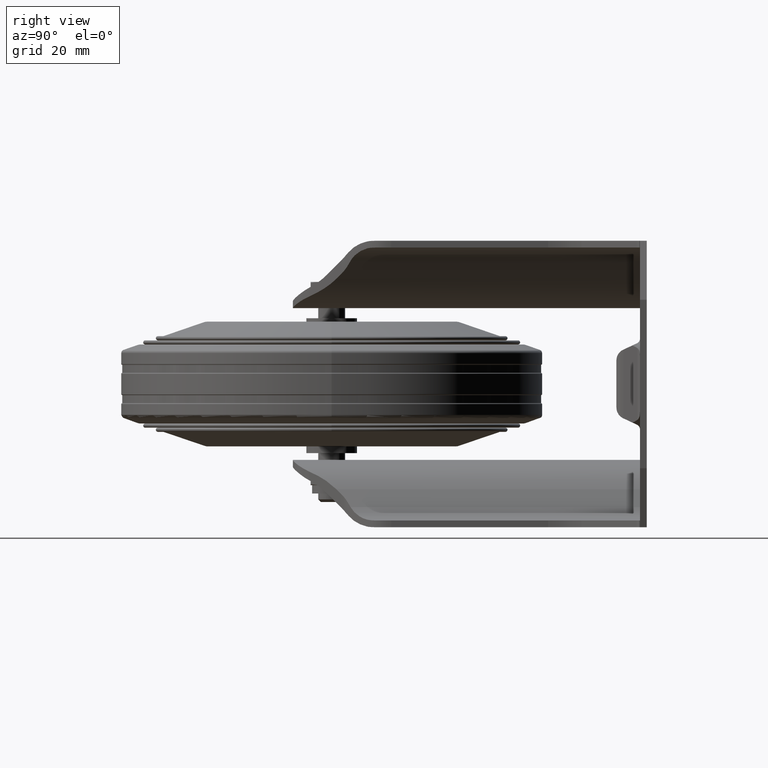
[diagram: clean part render]
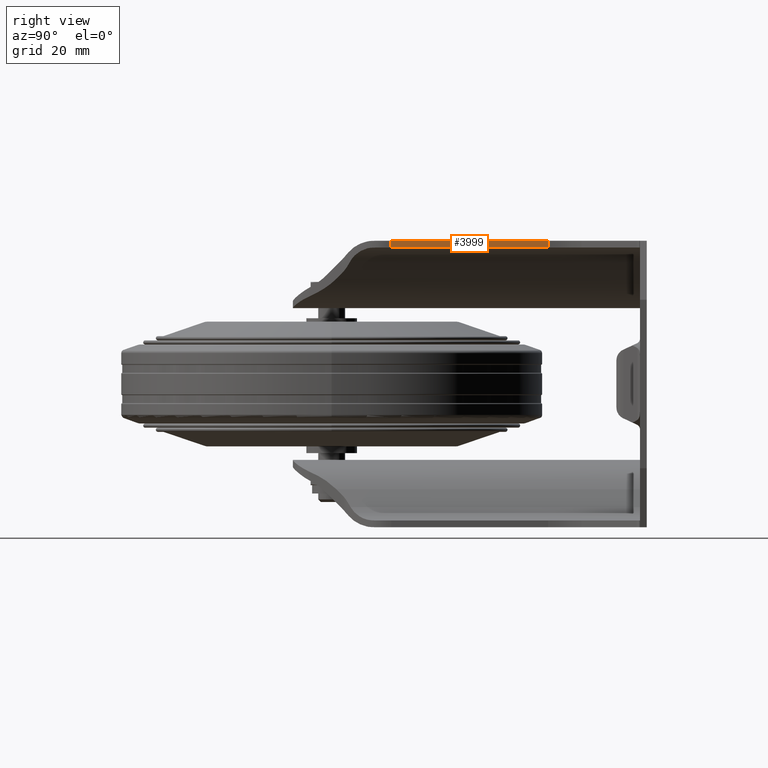
[diagram: same view with one face highlighted and labeled with its STEP entity id]
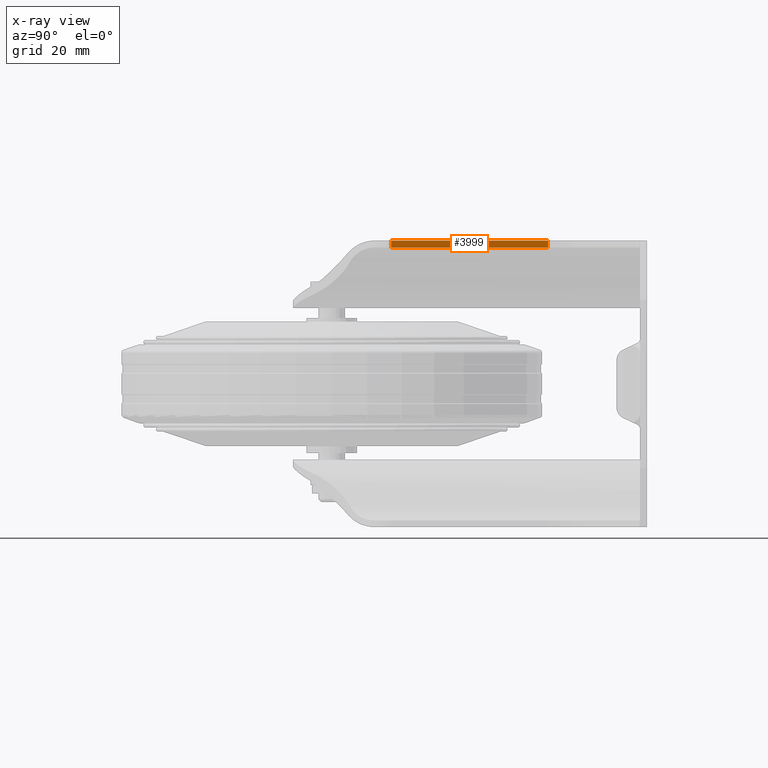
[diagram: x-ray of the same camera — body ghosted, the highlighted face saturated]
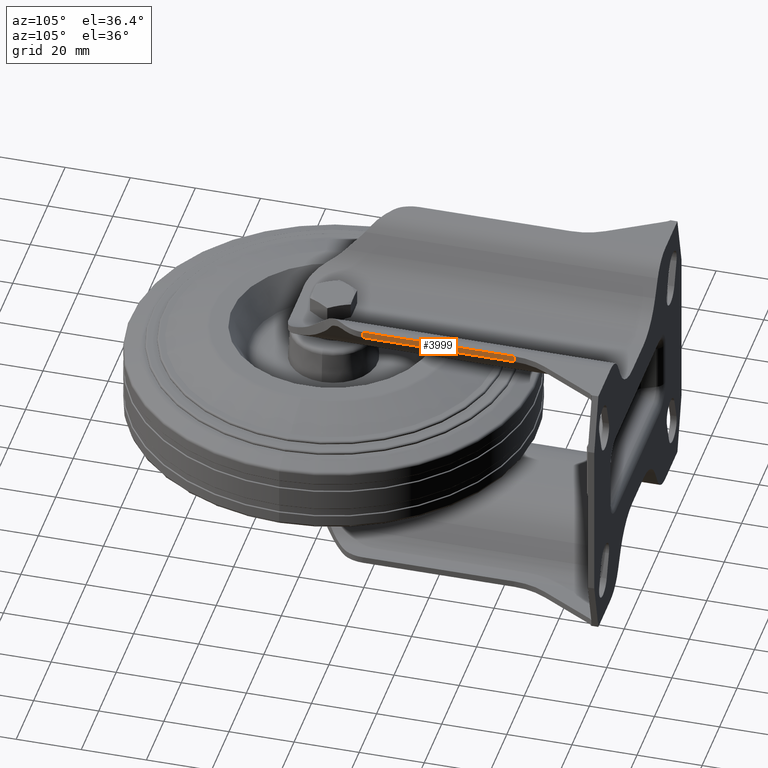
[diagram: same view with one face highlighted and labeled with its STEP entity id]
A machine part, right view. The second image highlights one B-rep face of the part: STEP entity #3999.
The next image is the same camera in x-ray: the body ghosted, the highlighted face saturated — about 0% of this face is hidden behind the body in this view.
A second angle (auxiliary view) of the same face is appended — the face is thin or edge-on in the first view.
In plain terms, the highlighted planar face has unit normal (1, 0, 0).
Its self-contained STEP definition (entity closure, byte-faithful):
#273=PLANE('',#4499);
#430=LINE('',#6867,#697);
#492=LINE('',#7075,#759);
#508=LINE('',#7115,#775);
#509=LINE('',#7117,#776);
#697=VECTOR('',#5243,1000.);
#759=VECTOR('',#5429,1000.);
#775=VECTOR('',#5481,1000.);
#776=VECTOR('',#5484,1000.);
#1053=FACE_OUTER_BOUND('',#1316,.T.);
#1316=EDGE_LOOP('',(#3398,#3399,#3400,#3401));
#1917=VERTEX_POINT('',#6864);
#1918=VERTEX_POINT('',#6866);
#1983=VERTEX_POINT('',#7072);
#1984=VERTEX_POINT('',#7074);
#2368=EDGE_CURVE('',#1917,#1918,#430,.T.);
#2468=EDGE_CURVE('',#1983,#1984,#492,.T.);
#2487=EDGE_CURVE('',#1917,#1984,#508,.T.);
#2488=EDGE_CURVE('',#1918,#1983,#509,.T.);
#3398=ORIENTED_EDGE('',*,*,#2487,.T.);
#3399=ORIENTED_EDGE('',*,*,#2468,.F.);
#3400=ORIENTED_EDGE('',*,*,#2488,.F.);
#3401=ORIENTED_EDGE('',*,*,#2368,.F.);
#3999=ADVANCED_FACE('',(#1053),#273,.T.);
#4499=AXIS2_PLACEMENT_3D('',#7116,#5482,#5483);
#5243=DIRECTION('',(0.,1.,0.));
#5429=DIRECTION('',(0.,-1.,0.));
#5481=DIRECTION('',(0.,0.,-1.));
#5482=DIRECTION('center_axis',(1.,0.,0.));
#5483=DIRECTION('ref_axis',(0.,0.,-1.));
#5484=DIRECTION('',(0.,0.,-1.));
#6864=CARTESIAN_POINT('',(32.4,17.6305928918509,42.5));
#6866=CARTESIAN_POINT('',(32.4,64.2132529275556,42.5));
#6867=CARTESIAN_POINT('',(32.4,91.5,42.5));
#7072=CARTESIAN_POINT('',(32.4,64.2132529275556,40.5));
#7074=CARTESIAN_POINT('',(32.4,17.6305928918509,40.5));
#7075=CARTESIAN_POINT('',(32.4,-62.5,40.5));
#7115=CARTESIAN_POINT('',(32.4,17.6305928918509,100.));
#7116=CARTESIAN_POINT('Origin',(32.4,64.2132529275556,100.));
#7117=CARTESIAN_POINT('',(32.4,64.2132529275556,100.));